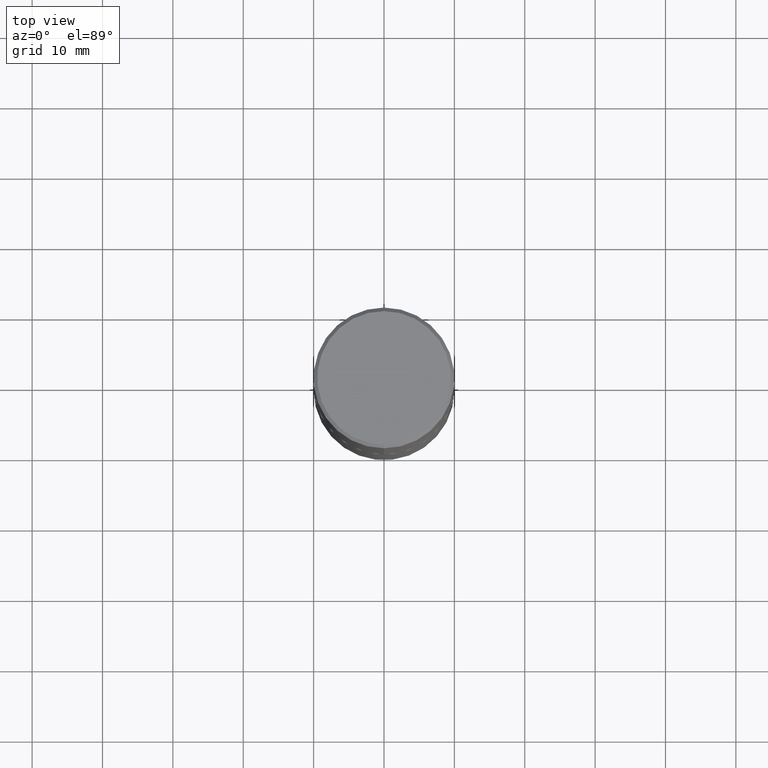
[diagram: clean part render]
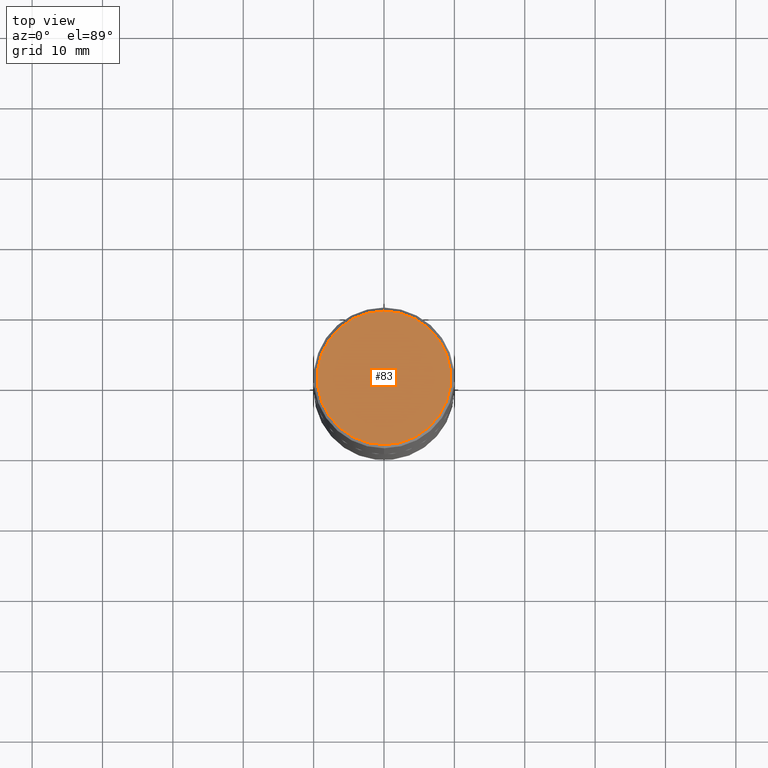
[diagram: same view with one face highlighted and labeled with its STEP entity id]
A machine part, top view. The second image highlights one B-rep face of the part: STEP entity #83.
In plain terms, the highlighted planar face has unit normal (0, -0, -1).
Its self-contained STEP definition (entity closure, byte-faithful):
#6 = DIRECTION ( 'NONE',  ( -2.447902336346030930E-29, 3.487996385144809755E-15, 1.000000000000000000 ) ) ;
#15 = VERTEX_POINT ( 'NONE', #129 ) ;
#17 = AXIS2_PLACEMENT_3D ( 'NONE', #347, #187, #23 ) ;
#23 = DIRECTION ( 'NONE',  ( 6.982962677686265922E-15, 1.000000000000000000, -3.487996385144809360E-15 ) ) ;
#27 = CARTESIAN_POINT ( 'NONE',  ( -2.632373081744936315E-15, -0.3737000000000000322, 1.238134234580041113E-15 ) ) ;
#29 = DIRECTION ( 'NONE',  ( -6.982962677686265922E-15, -1.000000000000000000, 3.487996385144809755E-15 ) ) ;
#37 = DIRECTION ( 'NONE',  ( -6.982962677686265922E-15, -1.000000000000000000, 3.487996385144809755E-15 ) ) ;
#44 = VERTEX_POINT ( 'NONE', #27 ) ;
#58 = DIRECTION ( 'NONE',  ( -2.447902336346030930E-29, 3.487996385144809755E-15, 1.000000000000000000 ) ) ;
#83 = ADVANCED_FACE ( 'NONE', ( #377 ), #218, .F. ) ;
#108 = CIRCLE ( 'NONE', #176, 0.3737000000000000322 ) ;
#129 = CARTESIAN_POINT ( 'NONE',  ( 2.679362779428220707E-15, 0.3737000000000000322, -1.368794263677189641E-15 ) ) ;
#141 = CARTESIAN_POINT ( 'NONE',  ( 1.599214952469751148E-45, -2.278708545868848433E-31, -6.533001454857425165E-17 ) ) ;
#160 = CARTESIAN_POINT ( 'NONE',  ( 1.599214952469751148E-45, -2.278708545868848433E-31, -6.533001454857425165E-17 ) ) ;
#176 = AXIS2_PLACEMENT_3D ( 'NONE', #160, #58, #29 ) ;
#183 = ORIENTED_EDGE ( 'NONE', *, *, #191, .T. ) ;
#184 = CIRCLE ( 'NONE', #278, 0.3737000000000000322 ) ;
#187 = DIRECTION ( 'NONE',  ( 2.447902336346030930E-29, -3.487996385144809360E-15, -1.000000000000000000 ) ) ;
#191 = EDGE_CURVE ( 'NONE', #44, #15, #108, .T. ) ;
#218 = PLANE ( 'NONE',  #17 ) ;
#223 = EDGE_LOOP ( 'NONE', ( #290, #183 ) ) ;
#278 = AXIS2_PLACEMENT_3D ( 'NONE', #141, #6, #37 ) ;
#290 = ORIENTED_EDGE ( 'NONE', *, *, #346, .T. ) ;
#346 = EDGE_CURVE ( 'NONE', #15, #44, #184, .T. ) ;
#347 = CARTESIAN_POINT ( 'NONE',  ( 2.609533152651357803E-15, 0.3737000000000000322, -1.336129256402902755E-15 ) ) ;
#377 = FACE_OUTER_BOUND ( 'NONE', #223, .T. ) ;